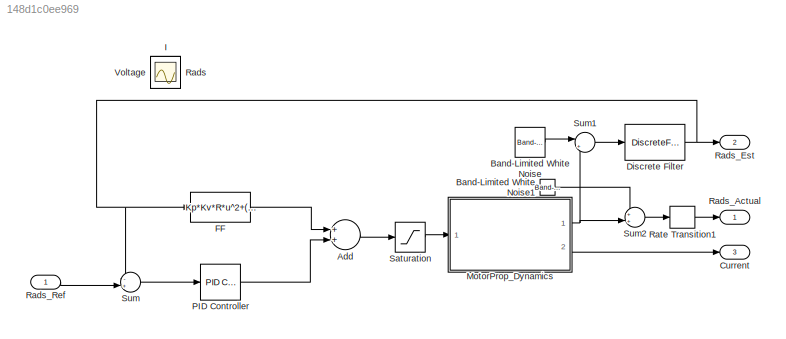
MODEL slx_148d1c0ee969
KIND model
CONFIG AbsTol = auto
CONFIG EnableMultiTasking = off
CONFIG FixedStep = auto
CONFIG MaxStep = auto
CONFIG MinStep = auto
CONFIG RelTol = 1e-3
CONFIG SampleTimeConstraint = Unconstrained
CONFIG Solver = VariableStepAuto
CONFIG SolverName = VariableStepAuto
CONFIG StartTime = 0.0
CONFIG StopTime = 10.0
WORKSPACE source: MAT-file member
WORKSPACE MCOS: class17 (value not decoded)
WORKSPACE MCOS: class17 (value not decoded)
BLOCK [Sum] Add
  InputSameDT = off
  OutDataTypeStr = Inherit: Inherit via internal rule
  Ports = [2, 1]
  SaturateOnIntegerOverflow = off
BLOCK [Reference] Band-Limited White Noise  REF=simulink/Sources/Band-Limited
White Noise
  Ports = [0, 1]
  SourceBlock = simulink/Sources/Band-Limited\nWhite Noise
  SourceProductBaseCode = SL
  SourceProductName = Simulink
  SourceType = Band-Limited White Noise.
BLOCK [Reference] Band-Limited White Noise1  REF=simulink/Sources/Band-Limited
White Noise
  Ports = [0, 1]
  SourceBlock = simulink/Sources/Band-Limited\nWhite Noise
  SourceProductBaseCode = SL
  SourceProductName = Simulink
  SourceType = Band-Limited White Noise.
BLOCK [Outport] Current
  IconDisplay = Port number
  Port = 3
BLOCK [DiscreteFilter] Discrete Filter
  Denominator = [1 -0.6]
  InitialStates = 600
  InputPortMap = u0
  Numerator = [0.4]
  Ports = [1, 1]
BLOCK [Fcn] FF
  Expr = Kp*Kv*R*u^2+(Kf*Kv*R+ 1/Kv)*u+I0*R
BLOCK [Scope] I
  IOType = viewer
  NumInputPorts = 1
  Ports = []
  ScopeSpecificationString = Simulink.scopes.TimeScopeBlockCfg('CurrentConfiguration', extmgr.ConfigurationSet(extmgr.Configuration('Core','General UI',true),extmgr.Configuration('Core','Source UI',true),extmgr.Configuration('Sources','WiredSimulink',true,'DataLoggingVariableName','ScopeData1'),extmgr.Configuration('Visuals','Time Domain',true,'SerializedDisplays',{struct('MinYLimReal','-1.60637','MaxYLimReal','14.45733','YLa...<+1435ch>
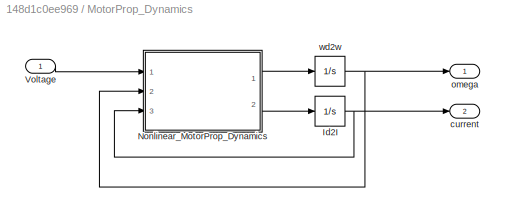
BLOCK [SubSystem] MotorProp_Dynamics
  Ports = [1, 2]
  RequestExecContextInheritance = off
  Variant = off
BLOCK [Integrator] MotorProp_Dynamics/Id2I
  InitialCondition = 8
  Ports = [1, 1]
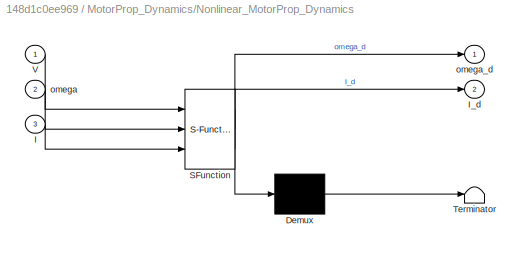
BLOCK [SubSystem] MotorProp_Dynamics/Nonlinear_MotorProp_Dynamics
  ErrorFcn = Stateflow.Translate.translate
  PermitHierarchicalResolution = ExplicitOnly
  Ports = [3, 2]
  RequestExecContextInheritance = off
  SFBlockType = MATLAB Function
  TreatAsAtomicUnit = on
  Variant = off
BLOCK [Demux] MotorProp_Dynamics/Nonlinear_MotorProp_Dynamics/ Demux 
  Outputs = 1
  Ports = [1, 1]
BLOCK [S-Function] MotorProp_Dynamics/Nonlinear_MotorProp_Dynamics/ SFunction 
  EnableBusSupport = on
  FunctionName = sf_sfun
  Parameters = I0,J,Kf,Kp,Kt,Kv,L,R
  PortCounts = [3 3]
  Ports = [3, 3]
  SFcnIsStateOwnerBlock = off
  SFunctionDeploymentMode = off
  Tag = Stateflow S-Function Nonlinear_Motor_Tracking 2
BLOCK [Terminator] MotorProp_Dynamics/Nonlinear_MotorProp_Dynamics/ Terminator 
BLOCK [Inport] MotorProp_Dynamics/Nonlinear_MotorProp_Dynamics/I
  IconDisplay = Port number
  Port = 3
BLOCK [Outport] MotorProp_Dynamics/Nonlinear_MotorProp_Dynamics/I_d
  IconDisplay = Port number
  Port = 2
BLOCK [Inport] MotorProp_Dynamics/Nonlinear_MotorProp_Dynamics/V
  IconDisplay = Port number
BLOCK [Inport] MotorProp_Dynamics/Nonlinear_MotorProp_Dynamics/omega
  IconDisplay = Port number
  Port = 2
BLOCK [Outport] MotorProp_Dynamics/Nonlinear_MotorProp_Dynamics/omega_d
  IconDisplay = Port number
BLOCK [Inport] MotorProp_Dynamics/Voltage
  IconDisplay = Port number
BLOCK [Outport] MotorProp_Dynamics/current
  IconDisplay = Port number
  Port = 2
BLOCK [Outport] MotorProp_Dynamics/omega
  IconDisplay = Port number
BLOCK [Integrator] MotorProp_Dynamics/wd2w
  InitialCondition = 700
  Ports = [1, 1]
BLOCK [Reference] PID Controller  REF=simulink/Continuous/PID Controller
  Ports = [1, 1]
  SourceBlock = simulink/Continuous/PID Controller
  SourceProductBaseCode = SL
  SourceProductName = Simulink
  SourceType = PID 1dof
BLOCK [Scope] Rads
  IOType = viewer
  NumInputPorts = 1
  Ports = []
  ScopeSpecificationString = Simulink.scopes.TimeScopeBlockCfg('CurrentConfiguration', extmgr.ConfigurationSet(extmgr.Configuration('Core','General UI',true),extmgr.Configuration('Core','Source UI',true),extmgr.Configuration('Sources','WiredSimulink',true),extmgr.Configuration('Visuals','Time Domain',true,'SerializedDisplays',{struct('MinYLimReal','558.06631','MaxYLimReal','645.67402','YLabelReal','','MinYLimMag','558.06631',...<+1454ch>
BLOCK [Outport] Rads_Actual
  IconDisplay = Port number
BLOCK [Outport] Rads_Est
  IconDisplay = Port number
  Port = 2
BLOCK [Inport] Rads_Ref
  IconDisplay = Port number
BLOCK [RateTransition] Rate Transition1
BLOCK [Saturate] Saturation
  InputPortMap = u0
  LowerLimit = 1.2
  Ports = [1, 1]
  UpperLimit = 14
BLOCK [Sum] Sum
  IconShape = round
  InputSameDT = off
  Inputs = -+|
  OutDataTypeStr = Inherit: Inherit via internal rule
  Ports = [2, 1]
  SaturateOnIntegerOverflow = off
BLOCK [Sum] Sum1
  IconShape = round
  InputSameDT = off
  Inputs = |++
  OutDataTypeStr = Inherit: Inherit via internal rule
  Ports = [2, 1]
  SaturateOnIntegerOverflow = off
BLOCK [Sum] Sum2
  IconShape = round
  InputSameDT = off
  Inputs = ++|
  OutDataTypeStr = Inherit: Inherit via internal rule
  Ports = [2, 1]
  SaturateOnIntegerOverflow = off
BLOCK [Scope] Voltage
  IOType = viewer
  NumInputPorts = 1
  Ports = []
  ScopeSpecificationString = Simulink.scopes.TimeScopeBlockCfg('CurrentConfiguration', extmgr.ConfigurationSet(extmgr.Configuration('Core','General UI',true),extmgr.Configuration('Core','Source UI',true),extmgr.Configuration('Sources','WiredSimulink',true,'DataLoggingVariableName','ScopeData2'),extmgr.Configuration('Visuals','Time Domain',true,'SerializedDisplays',{struct('MinYLimReal','-0.15','MaxYLimReal','13.35','YLabelRea...<+1464ch>
LINE Add:1 -> Saturation:1
LINE Band-Limited White Noise1:1 -> Sum2:1
LINE Band-Limited White Noise:1 -> Sum1:1
NET Discrete Filter:1 -> FF:1, Rads_Est:1, Sum:1
LINE FF:1 -> Add:1
NET MotorProp_Dynamics/Id2I:1 -> MotorProp_Dynamics/Nonlinear_MotorProp_Dynamics:3, MotorProp_Dynamics/current:1
LINE MotorProp_Dynamics/Nonlinear_MotorProp_Dynamics:1 -> MotorProp_Dynamics/wd2w:1
LINE MotorProp_Dynamics/Nonlinear_MotorProp_Dynamics:2 -> MotorProp_Dynamics/Id2I:1
LINE MotorProp_Dynamics/Voltage:1 -> MotorProp_Dynamics/Nonlinear_MotorProp_Dynamics:1
NET MotorProp_Dynamics/wd2w:1 -> MotorProp_Dynamics/Nonlinear_MotorProp_Dynamics:2, MotorProp_Dynamics/omega:1
NET MotorProp_Dynamics:1 -> Sum1:2, Sum2:2
LINE MotorProp_Dynamics:2 -> Current:1
LINE PID Controller:1 -> Add:2
LINE Rads_Ref:1 -> Sum:2
LINE Rate Transition1:1 -> Rads_Actual:1
LINE Saturation:1 -> MotorProp_Dynamics:1
LINE Sum1:1 -> Discrete Filter:1
LINE Sum2:1 -> Rate Transition1:1
LINE Sum:1 -> PID Controller:1
note: NET lines group one-source signal fan-out (src -> all destinations, sorted); 1:1 wires keep LINE
CHART MotorProp_Dynamics/Nonlinear_MotorProp_Dynamics states=1 transitions=1
  STATE_LABEL 'eML_blk_kernel()'
  STATE_LABEL 'SCRIPT:\nfunction [omega_d, I_d] = fcn(V,omega, I, Kp, J, Kf, Kt, I0, L, Kv, R)\nomega_d = (-Kp/J)*(omega^2) - Kf/J*omega + Kt/J*(I-I0);\nI_d = 1/L*(-1/Kv*omega - R*I + V);\n'
